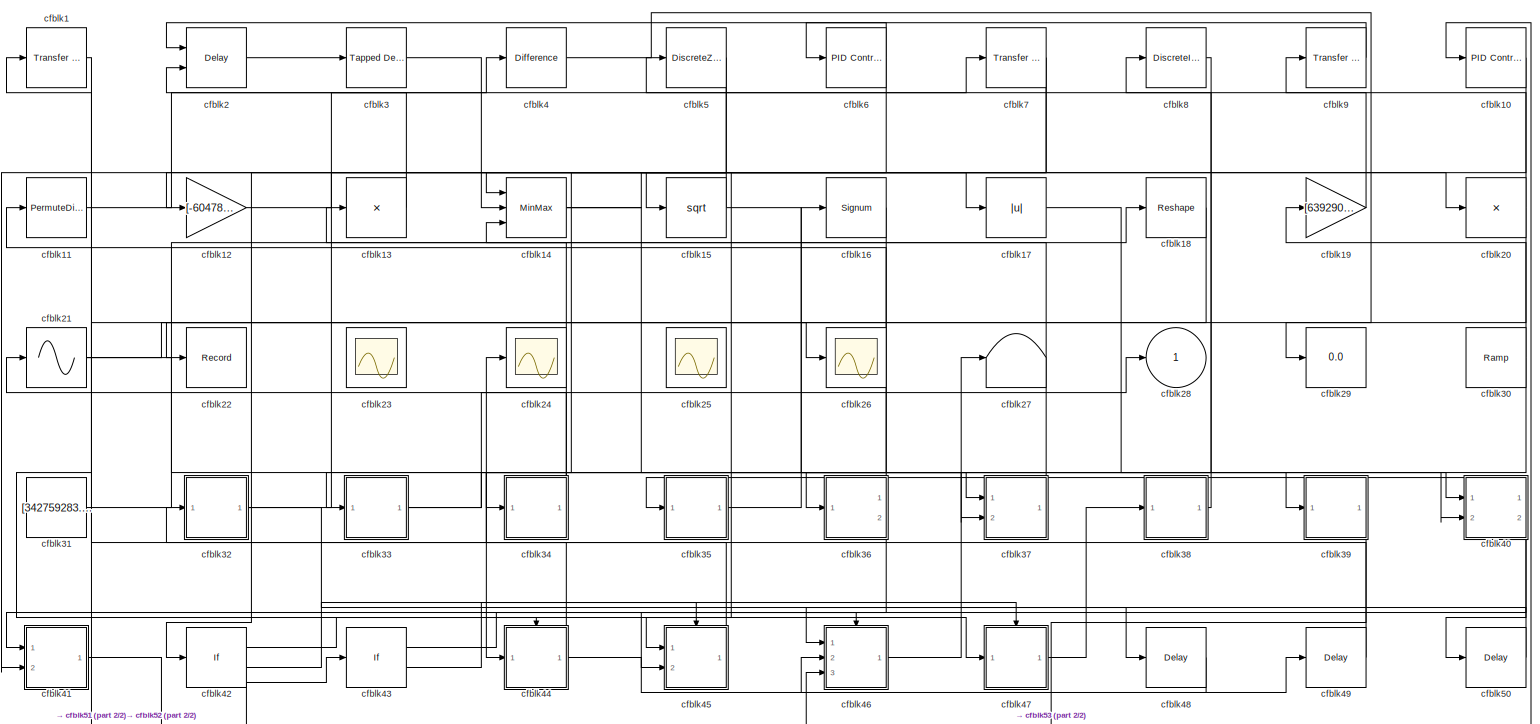
[diagram: root canvas - part 1/2, most of the canvas]
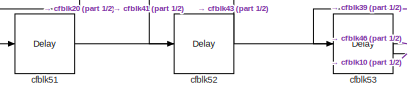
[diagram: root canvas - part 2/2, bottom left region]
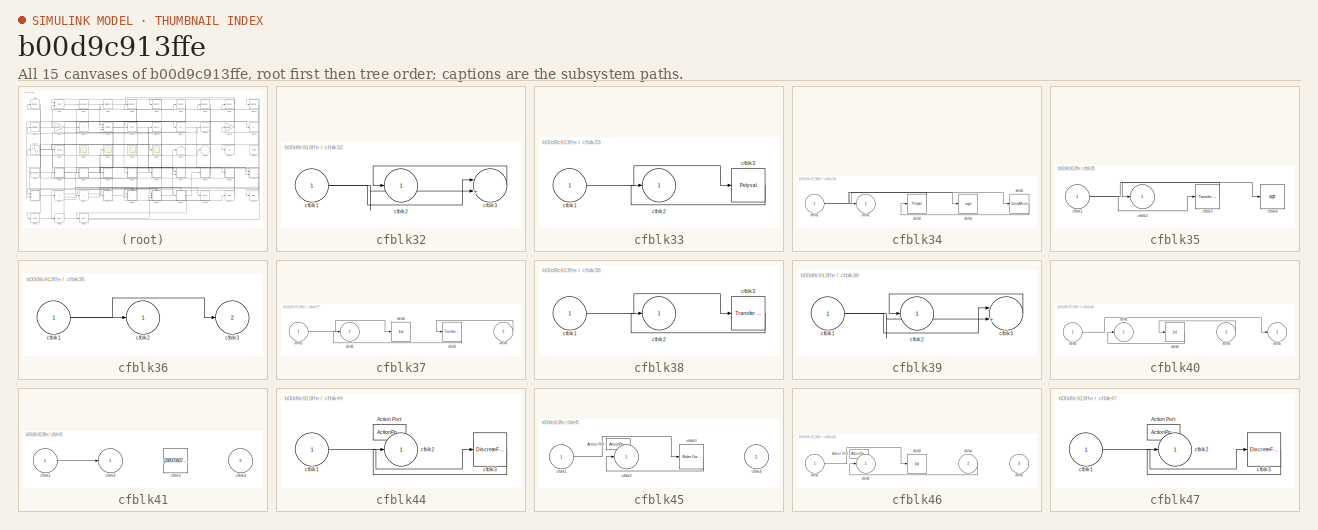
[diagram: thumbnail index - all 15 canvases of the model, root first then tree order]
MODEL slx_b00d9c913ffe
KIND model
CONFIG AbsTol = auto
CONFIG EnableMultiTasking = off
CONFIG FixedStep = auto
CONFIG MaxStep = auto
CONFIG MinStep = auto
CONFIG RelTol = 1e-3
CONFIG SampleTimeConstraint = Unconstrained
CONFIG SolverName = VariableStepAuto
CONFIG StartTime = 0.0
CONFIG StopTime = 10.0
BLOCK [Reference] cfblk1  REF=simulink/Discrete/Transfer Fcn
Lead or Lag
  Ports = [1, 1]
  SourceBlock = simulink/Discrete/Transfer Fcn\nLead or Lag
  SourceProductBaseCode = SL
  SourceType = Lead or Lag Compensator
BLOCK [Reference] cfblk10  REF=slpidlib/PID Controller
  Ports = [1, 1]
  SourceBlock = slpidlib/PID Controller
  SourceProductBaseCode = SL
  SourceType = PID 1dof
BLOCK [PermuteDimensions] cfblk11
BLOCK [Gain] cfblk12
  Gain = [-604783687.857641]
BLOCK [Product] cfblk13
  Inputs = *
  Ports = [1, 1]
BLOCK [MinMax] cfblk14
  Function = max
  Inputs = 3
  Ports = [3, 1]
BLOCK [Sqrt] cfblk15
BLOCK [Signum] cfblk16
BLOCK [Abs] cfblk17
  SaturateOnIntegerOverflow = off
BLOCK [Reshape] cfblk18
  Ports = [1, 1]
BLOCK [Gain] cfblk19
  Gain = [639290085.340123]
BLOCK [Delay] cfblk2
  DelayLengthSource = Input port
  InputPortMap = u0,p1
  Ports = [2, 1]
  SampleTime = 1
BLOCK [Product] cfblk20
  Inputs = *
  Ports = [1, 1]
BLOCK [Sin] cfblk21
  Ports = [1, 1]
  SampleTime = 0
  TimeSource = Use external signal
BLOCK [Record] cfblk22
  FileSettingsInternal = {"entries":[{"content":{"excelSettings":{"content":{},"type":"Streamout.ExcelSettings"}},"type":"Streamout.FileSettingStorage","uuid":"9cd448dc-63f6-40cf-ab93-9ae7effc29b4"}],"packageUris":["http://schema.mathworks.com/mf0/streamout_blocks/R2020a"],"version":"1.0"}
  Ports = [1]
  SignalsInternal = {"entries":[{"content":{"signals":[{"content":{"blockPath":["sampleModel222/cfblk22"],"channel":[],"dimensions":[1],"domain":"sampleModel222/cfblk22","lineColor":"#64d413","plots":[1],"port":1,"sid":[""],"signalID":8667,"signalName":"cfblk18"},"type":"RecordBlkView.Signal","uuid":"dea9a8aa-c53d-427a-964f-759f9d42a048"}]},"type":"RecordBlkView.InputSignals","uuid":"77d9615f-a19a-4239-91ec-2ce8041b5...<+97ch>
  VisualizationBindings = {"sparklinesplugin":{"info":[{"bindingParametersList":[],"subplotID":1}]}}
BLOCK [Scope] cfblk23
  Floating = on
  NumInputPorts = 1
  Ports = []
BLOCK [Scope] cfblk24
  Floating = off
  NumInputPorts = 1
  Ports = [1]
BLOCK [Scope] cfblk25
  Floating = on
  NumInputPorts = 1
  Ports = []
BLOCK [Scope] cfblk26
  Floating = off
  NumInputPorts = 1
  Ports = [1]
BLOCK [Terminator] cfblk27
BLOCK [Outport] cfblk28
BLOCK [Display] cfblk29
  Decimation = 1
  Ports = [1]
BLOCK [Reference] cfblk3  REF=simulink/Discrete/Tapped Delay
  Ports = [1, 1]
  SourceBlock = simulink/Discrete/Tapped Delay
  SourceProductBaseCode = SL
  SourceType = Tapped Delay Line
BLOCK [Reference] cfblk30  REF=simulink/Sources/Ramp
  Ports = [0, 1]
  SourceBlock = simulink/Sources/Ramp
  SourceProductBaseCode = SL
  SourceType = Ramp
BLOCK [Constant] cfblk31
  SampleTime = 1
  Value = [342759283.991217]
BLOCK [SubSystem] cfblk32
  Ports = [1, 1]
  RequestExecContextInheritance = off
BLOCK [Inport] cfblk32/cfblk1
BLOCK [Outport] cfblk32/cfblk2
BLOCK [Sum] cfblk32/cfblk3
  Inputs = |++
  Ports = [2, 1]
BLOCK [SubSystem] cfblk33
  Ports = [1, 1]
  RequestExecContextInheritance = off
BLOCK [Inport] cfblk33/cfblk1
BLOCK [Outport] cfblk33/cfblk2
BLOCK [Polyval] cfblk33/cfblk3
  Coefs = [ +2.081618890e-019, -1.441693666e-014, +4.719686976e-010, -8.536869453e-006, +1.621573104e-001, -8.087801117e+001 ]
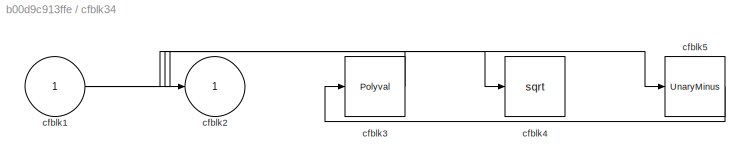
BLOCK [SubSystem] cfblk34
  Ports = [1, 1]
  RequestExecContextInheritance = off
BLOCK [Inport] cfblk34/cfblk1
BLOCK [Outport] cfblk34/cfblk2
BLOCK [Polyval] cfblk34/cfblk3
  Coefs = [ +2.081618890e-019, -1.441693666e-014, +4.719686976e-010, -8.536869453e-006, +1.621573104e-001, -8.087801117e+001 ]
BLOCK [Sqrt] cfblk34/cfblk4
BLOCK [UnaryMinus] cfblk34/cfblk5
BLOCK [SubSystem] cfblk35
  Ports = [1, 1]
  RequestExecContextInheritance = off
BLOCK [Inport] cfblk35/cfblk1
BLOCK [Outport] cfblk35/cfblk2
BLOCK [Reference] cfblk35/cfblk3  REF=simulink/Discrete/Transfer Fcn
Real Zero
  Ports = [1, 1]
  SourceBlock = simulink/Discrete/Transfer Fcn\nReal Zero
  SourceProductBaseCode = SL
  SourceType = Transfer Fcn Real Zero
BLOCK [Sqrt] cfblk35/cfblk4
BLOCK [SubSystem] cfblk36
  Ports = [1, 2]
  RequestExecContextInheritance = off
BLOCK [Inport] cfblk36/cfblk1
BLOCK [Outport] cfblk36/cfblk2
BLOCK [Outport] cfblk36/cfblk3
  Port = 2
BLOCK [SubSystem] cfblk37
  Ports = [2, 1]
  RequestExecContextInheritance = off
BLOCK [Inport] cfblk37/cfblk1
BLOCK [Outport] cfblk37/cfblk2
BLOCK [UnitDelay] cfblk37/cfblk3
  HasFrameUpgradeWarning = on
BLOCK [Reference] cfblk37/cfblk4  REF=simulink/Discrete/Transfer Fcn
Lead or Lag
  Ports = [1, 1]
  SourceBlock = simulink/Discrete/Transfer Fcn\nLead or Lag
  SourceProductBaseCode = SL
  SourceType = Lead or Lag Compensator
BLOCK [Inport] cfblk37/cfblk5
  Port = 2
BLOCK [SubSystem] cfblk38
  Ports = [1, 1]
  RequestExecContextInheritance = off
BLOCK [Inport] cfblk38/cfblk1
BLOCK [Outport] cfblk38/cfblk2
BLOCK [Reference] cfblk38/cfblk3  REF=simulink/Discrete/Transfer Fcn
Real Zero
  Ports = [1, 1]
  SourceBlock = simulink/Discrete/Transfer Fcn\nReal Zero
  SourceProductBaseCode = SL
  SourceType = Transfer Fcn Real Zero
BLOCK [SubSystem] cfblk39
  Ports = [1, 1]
  RequestExecContextInheritance = off
BLOCK [Inport] cfblk39/cfblk1
BLOCK [Outport] cfblk39/cfblk2
BLOCK [Sum] cfblk39/cfblk3
  Inputs = |++
  Ports = [2, 1]
BLOCK [Reference] cfblk4  REF=simulink/Discrete/Difference
  Ports = [1, 1]
  SourceBlock = simulink/Discrete/Difference
  SourceProductBaseCode = SL
  SourceType = Difference
BLOCK [SubSystem] cfblk40
  Ports = [2, 2]
  RequestExecContextInheritance = off
BLOCK [Inport] cfblk40/cfblk1
BLOCK [Outport] cfblk40/cfblk2
BLOCK [Abs] cfblk40/cfblk3
  SaturateOnIntegerOverflow = off
BLOCK [Inport] cfblk40/cfblk4
  Port = 2
BLOCK [Outport] cfblk40/cfblk5
  Port = 2
BLOCK [SubSystem] cfblk41
  Ports = [2, 1]
  RequestExecContextInheritance = off
BLOCK [Inport] cfblk41/cfblk1
BLOCK [Outport] cfblk41/cfblk2
BLOCK [Constant] cfblk41/cfblk3
  SampleTime = 1
  Value = [298370607.244743]
BLOCK [Inport] cfblk41/cfblk4
  Port = 2
BLOCK [If] cfblk42
  IfExpression = u1 >= 0
  Ports = [1, 2]
  SampleTime = 1
BLOCK [If] cfblk43
  IfExpression = u1 >= 0
  Ports = [1, 2]
  SampleTime = 1
BLOCK [SubSystem] cfblk44
  Ports = [1, 1, 0, 0, 0, 0, 0, 1]
  RequestExecContextInheritance = off
  TreatAsAtomicUnit = on
BLOCK [ActionPort] cfblk44/Action Port
  ActionPortLabel = if(u1 >= 0)
BLOCK [Inport] cfblk44/cfblk1
BLOCK [Outport] cfblk44/cfblk2
BLOCK [DiscreteFilter] cfblk44/cfblk3
  InputPortMap = u0
  Ports = [1, 1]
BLOCK [SubSystem] cfblk45
  Ports = [2, 1, 0, 0, 0, 0, 0, 1]
  RequestExecContextInheritance = off
  TreatAsAtomicUnit = on
BLOCK [ActionPort] cfblk45/Action Port
  ActionPortLabel = else
BLOCK [Inport] cfblk45/cfblk1
BLOCK [Outport] cfblk45/cfblk2
BLOCK [Reference] cfblk45/cfblk3  REF=simulink/Math
Operations/Slider
Gain
  Ports = [1, 1]
  SourceBlock = simulink/Math\nOperations/Slider\nGain
  SourceProductBaseCode = SL
  SourceType = Slider Gain
BLOCK [Inport] cfblk45/cfblk4
  Port = 2
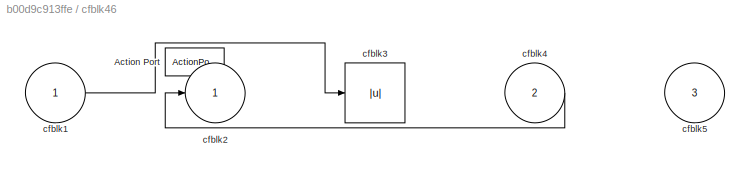
BLOCK [SubSystem] cfblk46
  Ports = [3, 1, 0, 0, 0, 0, 0, 1]
  RequestExecContextInheritance = off
  TreatAsAtomicUnit = on
BLOCK [ActionPort] cfblk46/Action Port
  ActionPortLabel = if(u1 >= 0)
BLOCK [Inport] cfblk46/cfblk1
BLOCK [Outport] cfblk46/cfblk2
BLOCK [Abs] cfblk46/cfblk3
  SaturateOnIntegerOverflow = off
BLOCK [Inport] cfblk46/cfblk4
  Port = 2
BLOCK [Inport] cfblk46/cfblk5
  Port = 3
BLOCK [SubSystem] cfblk47
  Ports = [1, 1, 0, 0, 0, 0, 0, 1]
  RequestExecContextInheritance = off
  TreatAsAtomicUnit = on
BLOCK [ActionPort] cfblk47/Action Port
  ActionPortLabel = else
BLOCK [Inport] cfblk47/cfblk1
BLOCK [Outport] cfblk47/cfblk2
BLOCK [DiscreteFilter] cfblk47/cfblk3
  InputPortMap = u0
  Ports = [1, 1]
BLOCK [Delay] cfblk48
  InputPortMap = u0
  Ports = [1, 1]
  SampleTime = 1
BLOCK [Delay] cfblk49
  InputPortMap = u0
  Ports = [1, 1]
  SampleTime = 1
BLOCK [DiscreteZeroPole] cfblk5
  Gain = 1
  Poles = [0 0.5]
BLOCK [Delay] cfblk50
  InputPortMap = u0
  Ports = [1, 1]
  SampleTime = 1
BLOCK [Delay] cfblk51
  InputPortMap = u0
  Ports = [1, 1]
  SampleTime = 1
BLOCK [Delay] cfblk52
  InputPortMap = u0
  Ports = [1, 1]
  SampleTime = 1
BLOCK [Delay] cfblk53
  InputPortMap = u0
  Ports = [1, 1]
  SampleTime = 1
BLOCK [Reference] cfblk6  REF=slpidlib/PID Controller
  Ports = [1, 1]
  SourceBlock = slpidlib/PID Controller
  SourceProductBaseCode = SL
  SourceType = PID 1dof
BLOCK [Reference] cfblk7  REF=simulink/Discrete/Transfer Fcn
Real Zero
  Ports = [1, 1]
  SourceBlock = simulink/Discrete/Transfer Fcn\nReal Zero
  SourceProductBaseCode = SL
  SourceType = Transfer Fcn Real Zero
BLOCK [DiscreteIntegrator] cfblk8
  ICPrevOutput = DiscIntNeverNeededParam
  ICPrevScaledInput = DiscIntNeverNeededParam
  InitialConditionSetting = Auto
  Ports = [1, 1]
BLOCK [Reference] cfblk9  REF=simulink/Discrete/Transfer Fcn
First Order
  Ports = [1, 1]
  SourceBlock = simulink/Discrete/Transfer Fcn\nFirst Order
  SourceProductBaseCode = SL
  SourceType = First Order Transfer Fcn
LINE cfblk10:1 -> cfblk34:1
LINE cfblk11:1 -> cfblk7:1
LINE cfblk12:1 -> cfblk17:1
LINE cfblk13:1 -> cfblk2:2
NET cfblk14:1 -> cfblk20:1, cfblk40:2
NET cfblk15:1 -> cfblk14:1, cfblk37:2
LINE cfblk16:1 -> cfblk44:1
LINE cfblk17:1 -> cfblk40:1
LINE cfblk18:1 -> cfblk22:1
LINE cfblk19:1 -> cfblk9:1
LINE cfblk1:1 -> cfblk47:1
NET cfblk20:1 -> cfblk51:1, cfblk5:1
NET cfblk21:1 -> cfblk26:1, cfblk39:1
LINE cfblk2:1 -> cfblk3:1
NET cfblk30:1 -> cfblk19:1, cfblk33:1
LINE cfblk31:1 -> cfblk18:1
NET cfblk32/cfblk1:1 -> cfblk32/cfblk3:1, cfblk32/cfblk3:2
LINE cfblk32/cfblk3:1 -> cfblk32/cfblk2:1
NET cfblk32:1 -> cfblk48:1, cfblk4:1
LINE cfblk33/cfblk1:1 -> cfblk33/cfblk3:1
LINE cfblk33/cfblk3:1 -> cfblk33/cfblk2:1
NET cfblk33:1 -> cfblk28:1, cfblk37:1
NET cfblk34/cfblk1:1 -> cfblk34/cfblk4:1, cfblk34/cfblk5:1
LINE cfblk34/cfblk3:1 -> cfblk34/cfblk2:1
LINE cfblk34/cfblk5:1 -> cfblk34/cfblk3:1
NET cfblk34:1 -> cfblk13:1, cfblk21:1
NET cfblk35/cfblk1:1 -> cfblk35/cfblk3:1, cfblk35/cfblk4:1
LINE cfblk35/cfblk3:1 -> cfblk35/cfblk2:1
LINE cfblk35:1 -> cfblk16:1
NET cfblk36/cfblk1:1 -> cfblk36/cfblk2:1, cfblk36/cfblk3:1
LINE cfblk36:1 -> cfblk11:1
LINE cfblk36:2 -> cfblk41:1
LINE cfblk37/cfblk1:1 -> cfblk37/cfblk3:1
LINE cfblk37/cfblk4:1 -> cfblk37/cfblk2:1
LINE cfblk37/cfblk5:1 -> cfblk37/cfblk4:1
LINE cfblk37:1 -> cfblk14:3
LINE cfblk38/cfblk1:1 -> cfblk38/cfblk3:1
LINE cfblk38/cfblk3:1 -> cfblk38/cfblk2:1
LINE cfblk38:1 -> cfblk8:1
NET cfblk39/cfblk1:1 -> cfblk39/cfblk3:1, cfblk39/cfblk3:2
LINE cfblk39/cfblk3:1 -> cfblk39/cfblk2:1
LINE cfblk39:1 -> cfblk53:1
LINE cfblk3:1 -> cfblk14:2
LINE cfblk40/cfblk1:1 -> cfblk40/cfblk5:1
LINE cfblk40/cfblk3:1 -> cfblk40/cfblk2:1
LINE cfblk40/cfblk4:1 -> cfblk40/cfblk3:1
LINE cfblk40:1 -> cfblk35:1
NET cfblk40:2 -> cfblk45:2, cfblk50:1
LINE cfblk41/cfblk1:1 -> cfblk41/cfblk2:1
LINE cfblk41:1 -> cfblk52:1
LINE cfblk42:1 -> cfblk44:ifaction
LINE cfblk42:2 -> cfblk45:ifaction
LINE cfblk43:1 -> cfblk46:ifaction
LINE cfblk43:2 -> cfblk47:ifaction
LINE cfblk44/cfblk1:1 -> cfblk44/cfblk3:1
LINE cfblk44/cfblk3:1 -> cfblk44/cfblk2:1
NET cfblk44:1 -> cfblk32:1, cfblk49:1
LINE cfblk45/cfblk1:1 -> cfblk45/cfblk3:1
LINE cfblk45/cfblk3:1 -> cfblk45/cfblk2:1
LINE cfblk45:1 -> cfblk24:1
LINE cfblk46/cfblk1:1 -> cfblk46/cfblk3:1
LINE cfblk46/cfblk4:1 -> cfblk46/cfblk2:1
LINE cfblk46:1 -> cfblk27:1
LINE cfblk47/cfblk1:1 -> cfblk47/cfblk3:1
LINE cfblk47/cfblk3:1 -> cfblk47/cfblk2:1
LINE cfblk47:1 -> cfblk38:1
LINE cfblk48:1 -> cfblk46:2
LINE cfblk49:1 -> cfblk1:1
LINE cfblk4:1 -> cfblk29:1
LINE cfblk50:1 -> cfblk46:1
LINE cfblk51:1 -> cfblk46:3
LINE cfblk52:1 -> cfblk43:1
LINE cfblk53:1 -> cfblk10:1
NET cfblk5:1 -> cfblk12:1, cfblk42:1
NET cfblk6:1 -> cfblk2:1, cfblk41:2
NET cfblk7:1 -> cfblk15:1, cfblk45:1
LINE cfblk8:1 -> cfblk36:1
LINE cfblk9:1 -> cfblk6:1
note: NET lines group one-source signal fan-out (src -> all destinations, sorted); 1:1 wires keep LINE
